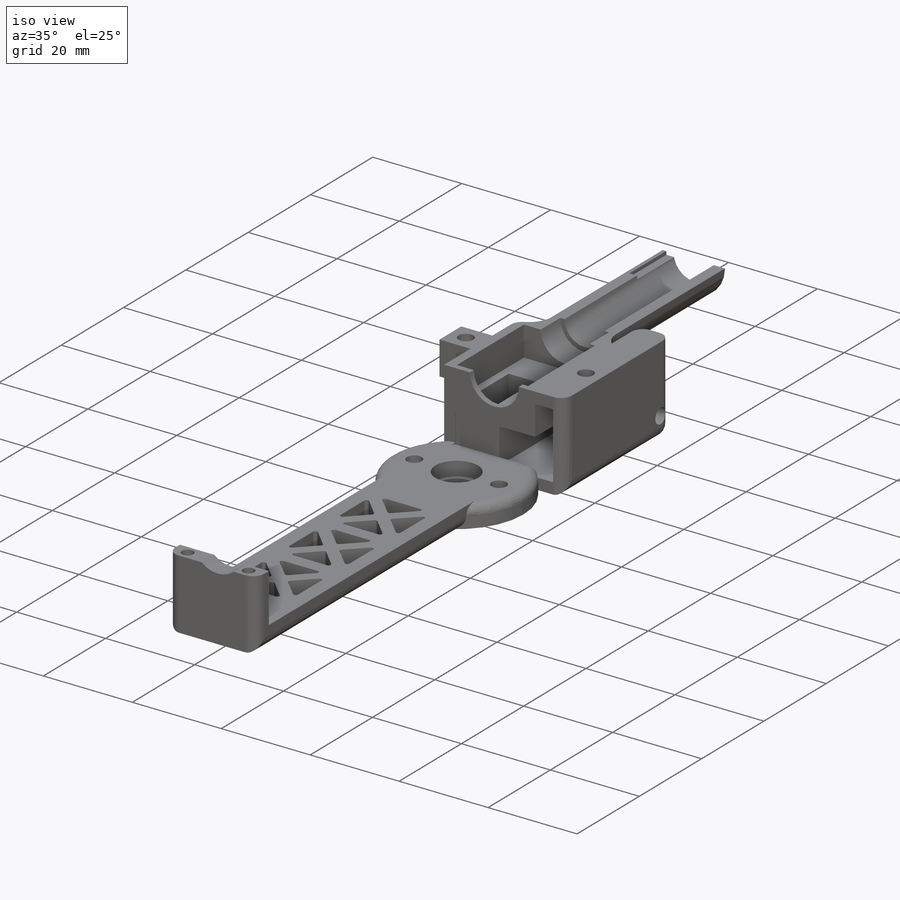
[diagram: iso view]
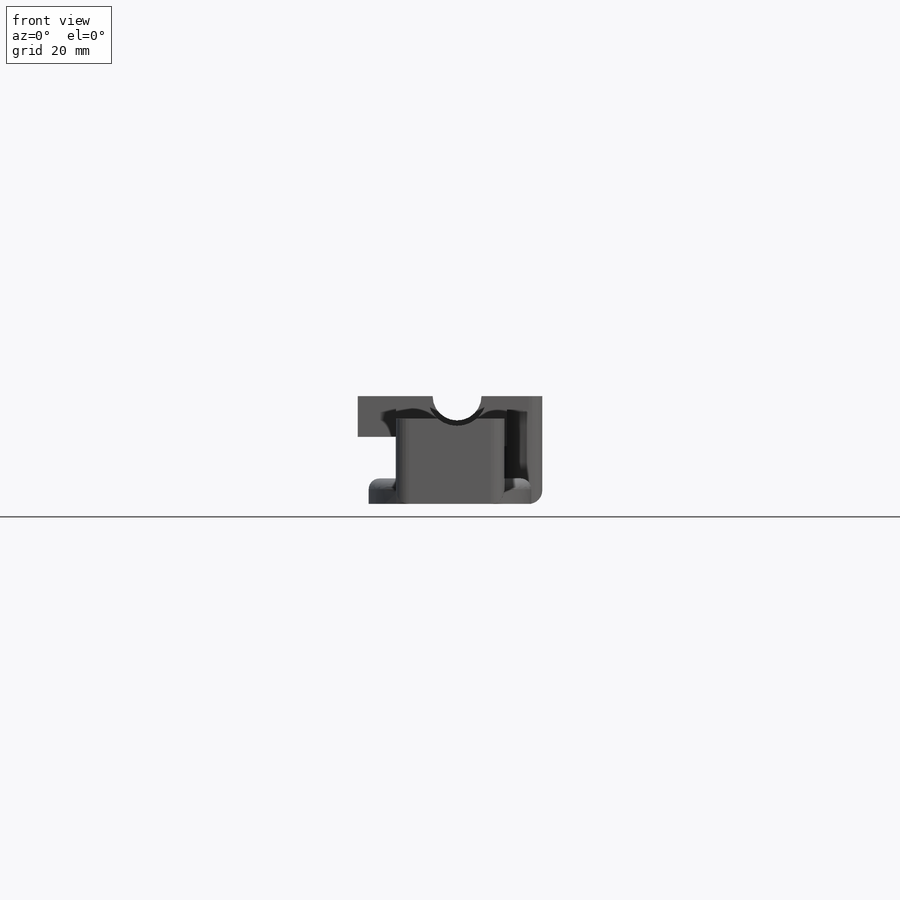
[diagram: front view]
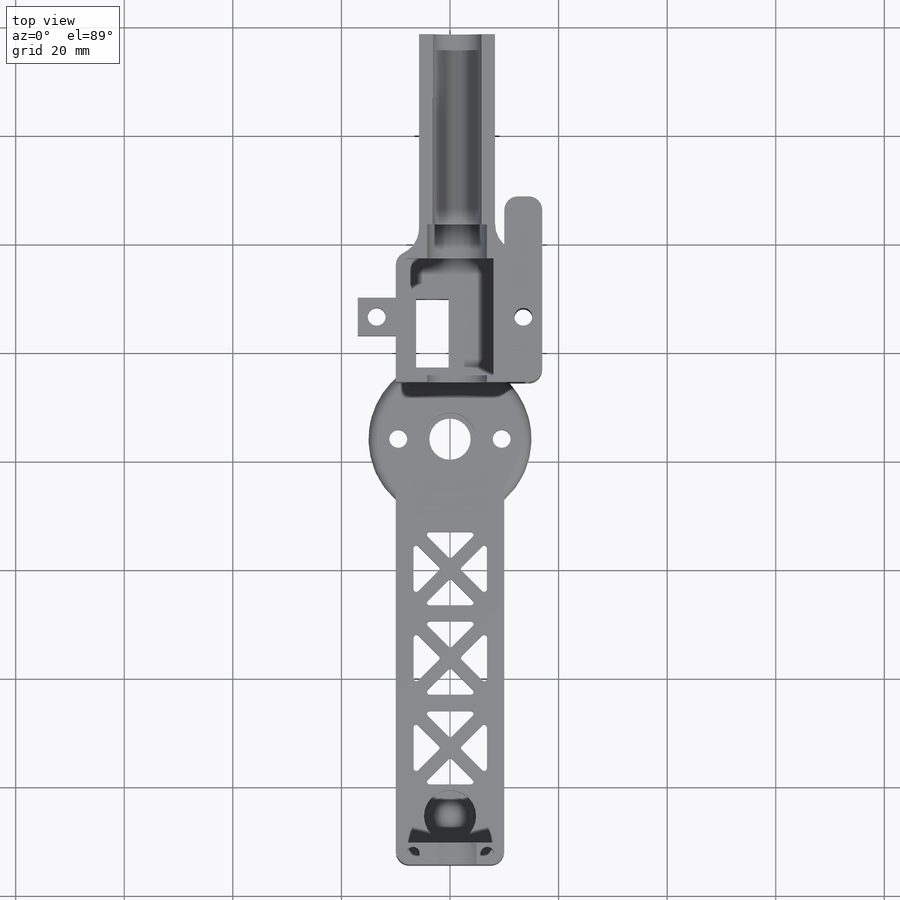
[diagram: top view]
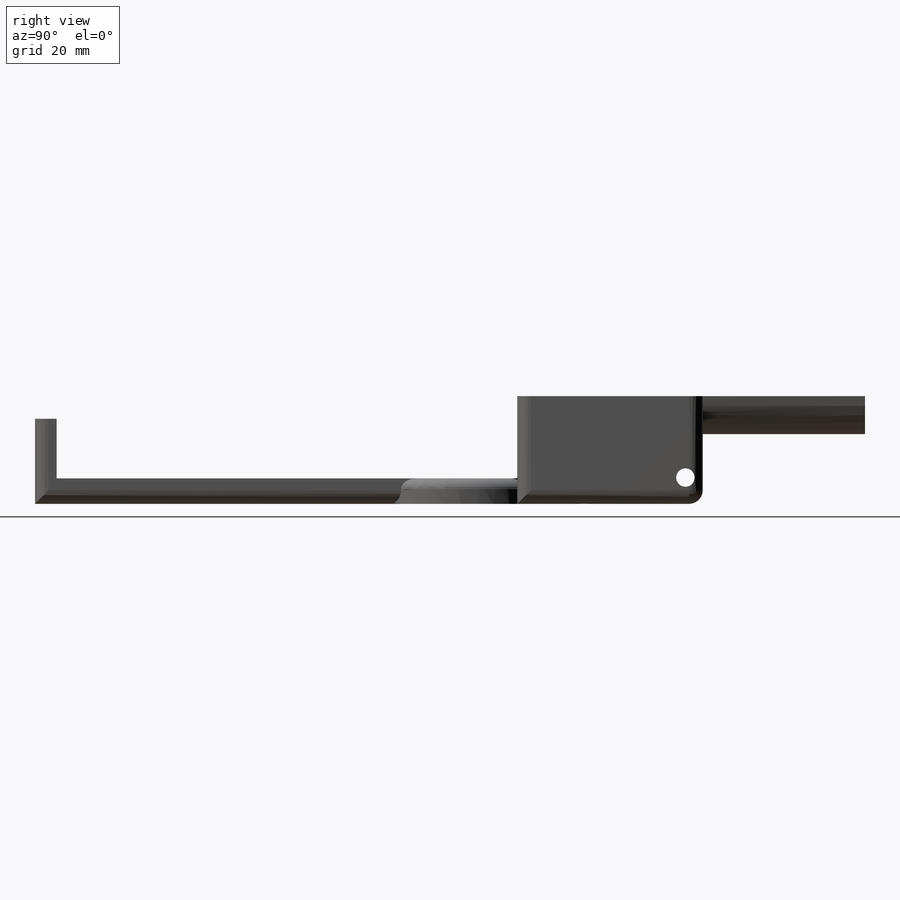
[diagram: right view]
SOLIDWORKS PART (.sldprt)
format: sldprt  version: not decoded by parser v0  size: 949,760 bytes
history: native  units: mm
features: sketch x26, cut_extrude x13, extrude x8, fillet x5, material x1, hole x1, shell x1 (+12 scaffold rows collapsed)
feature tree (67):
  scaffold x12  (default folders/planes/origin — collapsed)
  material  "Material <not specified>"
  sketch  "Sketch1"  dims[c1.D1=20.0mm c1.D2=116.84mm c1.D3=4.0mm c2.D2=112.84mm]
  extrude  "Boss-Extrude1"  Depth=4.689271mm
  sketch  "Sketch2"  dims[D1=4.0mm]
  extrude  "Boss-Extrude2"  Depth=10.990575mm
  sketch  "Sketch3"  dims[D1=30.0mm]
  sketch  "Sketch19"  dims[D1=24.0mm]
  extrude  "Boss-Extrude6"  Depth=15.15438mm
  sketch  "Sketch20"  dims[D1=16.0mm D2=21.5mm]
  cut_extrude  "Cut-Extrude17"  Depth=6.7mm
  sketch  "Sketch21"  dims[D1=11.0mm D2=11.3mm]
  cut_extrude  "Cut-Extrude18"  [1 undecoded]
  sketch  "Sketch22"  dims[D1=7.0mm D2=10.16mm]
  extrude  "Boss-Extrude7"  [1 undecoded]
  sketch  "Sketch23"  dims[D1=7.0mm]
  extrude  "Boss-Extrude8"  Depth=7mm
  sketch  "Sketch24"  dims[D1=3.3mm]
  cut_extrude  "Cut-Extrude19"  [1 undecoded]
  sketch  "Sketch9"
  sketch  "Sketch25"  dims[D1=~6.506568mm]
  extrude  "Boss-Extrude9"  Depth=5mm
  sketch  "Sketch26"  dims[D1=4.5mm]
  extrude  "Boss-Extrude10"  Depth=35.05mm
  sketch  "Sketch27"  dims[D1=0.75mm D2=~0.81294mm D3=1.75mm]
  cut_extrude  "Cut-Extrude20"  Depth=11.8mm
  sketch  "Sketch28"  dims[c1.D2=3.3mm c1.D3=3.3mm c1.D1=3.3mm c2.D3=3.3mm c2.D1=12.0mm c3.D3=9.0mm c3.D1=12.0mm c4.D3=3.5mm]
  cut_extrude  "Cut-Extrude21"  [1 undecoded]
  sketch  "Sketch29"  dims[D1=3.2mm D2=15.0mm]
  hole  "M3 Clearance Hole1"  Diameter=3.4mm Depth=17.02mm
  sketch  "Sketch31"
  sketch  "Sketch30"  dims[hole-wizard template sketch: 47 standard entries collapsed; hole parameters kept: c15.Hole Depth=17.02mm c15.D3=~14.816244mm c15.Drill Angle=118.0deg]
  sketch  "Sketch6"  dims[D1=9.6012mm D2=5.08mm]
  cut_extrude  "Cut-Extrude3"  Depth=3.175mm
  sketch  "Sketch7"  dims[D1=7.62mm]
  cut_extrude  "Cut-Extrude4"  Depth=0.508mm
  sketch  "Sketch17"  dims[D2=30.0mm D1=34.236mm]
  extrude  "Boss-Extrude5"  [1 undecoded]
  sketch  "Sketch8"  dims[D2=9.6012mm D1=~82.195111mm D3=69.524mm]
  cut_extrude  "Cut-Extrude5"  Depth=3.175mm
  sketch  "Sketch10"  dims[D1=7.62mm D2=34.236mm]
  cut_extrude  "Cut-Extrude6"  [1 undecoded]
  sketch  "Sketch13"  dims[D3=2.527mm D4=2.527mm D1=3.142mm D2=3.142mm]
  cut_extrude  "Cut-Extrude11"  Depth=10mm
  sketch  "Sketch5"  dims[D1=12.65mm D2=6.0mm D3=3.75mm D4=8.6mm]
  cut_extrude  "Cut-Extrude2"  [1 undecoded]
  sketch  "Sketch14"  dims[D1=19.05mm D2=3.302mm D3=3.302mm]
  cut_extrude  "Cut-Extrude15"  Depth=126.238mm
  sketch  "Sketch18"  dims[c1.D5=0.508mm c1.D8=0.508mm c1.D11=0.508mm c1.D1=10.0mm c1.D2=10.0mm c2.D2=60.0deg c3.D2=10.0mm c4.D2=45.0deg c4.D4=~8.660254mm c5.D4=90.0deg c5.D6=~13.476917mm c6.D6=45.0deg c6.D7=90.0deg c6.D9=45.0deg c6.D10=90.0deg c6.D3=4.0]
  cut_extrude  "Cut-Extrude16"  [1 undecoded]
  shell  "Shell2"  Thickness=2.5mm
  fillet  "Fillet12"  Radius=5mm
  fillet  "Fillet13"  Radius=3mm
  fillet  "Fillet14"  Radius=2.5mm
  fillet  "Fillet15"  Radius=5.08mm
  fillet  "Fillet18"  Radius=2mm
decode coverage: 44 of 54 modeling features carry decoded parameters
note: ~ marks probable driven/reference dimensions
note: 8 parameter values undecoded
summary: no parameter record found for 8 features
note: suppression state not decoded; provenance and decode notes live in map.json
